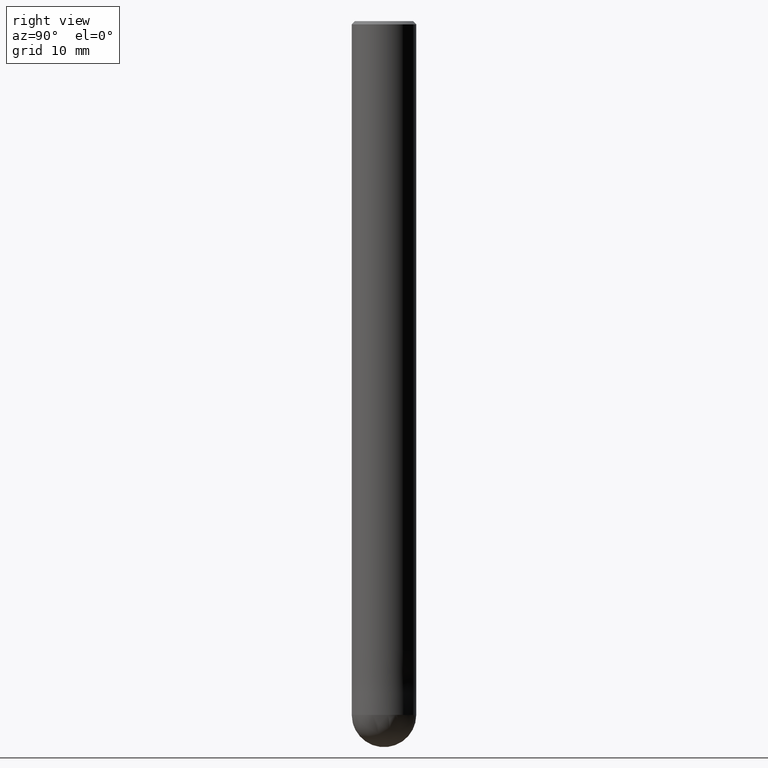
[diagram: clean part render]
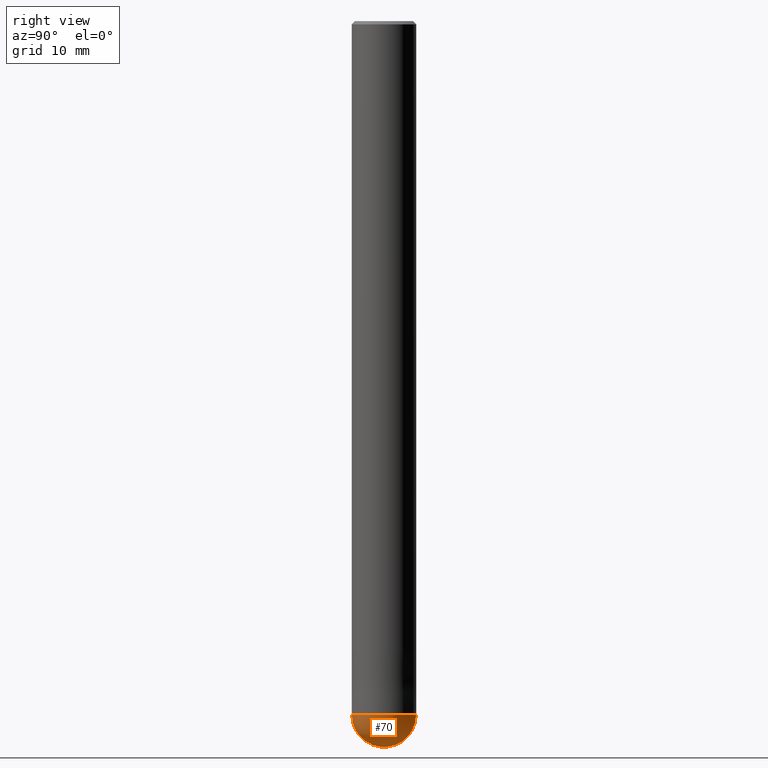
[diagram: same view with one face highlighted and labeled with its STEP entity id]
A machine part, right view. The second image highlights one B-rep face of the part: STEP entity #70.
In plain terms, the highlighted spherical surface has radius 4 mm.
Its self-contained STEP definition (entity closure, byte-faithful):
#70=ADVANCED_FACE('',(#165),#166,.T.);
#72=VERTEX_POINT('',#168);
#82=VERTEX_POINT('',#179);
#84=EDGE_CURVE('',#72,#82,#181,.T.);
#98=EDGE_CURVE('',#82,#72,#198,.T.);
#165=FACE_OUTER_BOUND('',#260,.T.);
#166=SPHERICAL_SURFACE('',#261,4.00000000000001);
#168=CARTESIAN_POINT('',(0.0,4.0,-86.0));
#179=CARTESIAN_POINT('',(4.89842541528951E-016,-4.0,-86.0));
#181=CIRCLE('',#277,4.0);
#198=CIRCLE('',#300,4.00000000000001);
#260=EDGE_LOOP('',(#377,#378));
#261=AXIS2_PLACEMENT_3D('',#379,#380,#381);
#277=AXIS2_PLACEMENT_3D('',#390,#391,#392);
#300=AXIS2_PLACEMENT_3D('',#422,#423,#424);
#377=ORIENTED_EDGE('',*,*,#98,.T.);
#378=ORIENTED_EDGE('',*,*,#84,.T.);
#379=CARTESIAN_POINT('',(0.0,0.0,-86.0));
#380=DIRECTION('',(0.0,1.0,0.0));
#381=DIRECTION('',(0.0,0.0,-1.0));
#390=CARTESIAN_POINT('',(0.0,0.0,-86.0));
#391=DIRECTION('',(0.0,0.0,-1.0));
#392=DIRECTION('',(0.0,1.0,0.0));
#422=CARTESIAN_POINT('',(0.0,0.0,-86.0));
#423=DIRECTION('',(1.0,0.0,1.22460635382238E-016));
#424=DIRECTION('',(-1.22460635382238E-016,0.0,1.0));